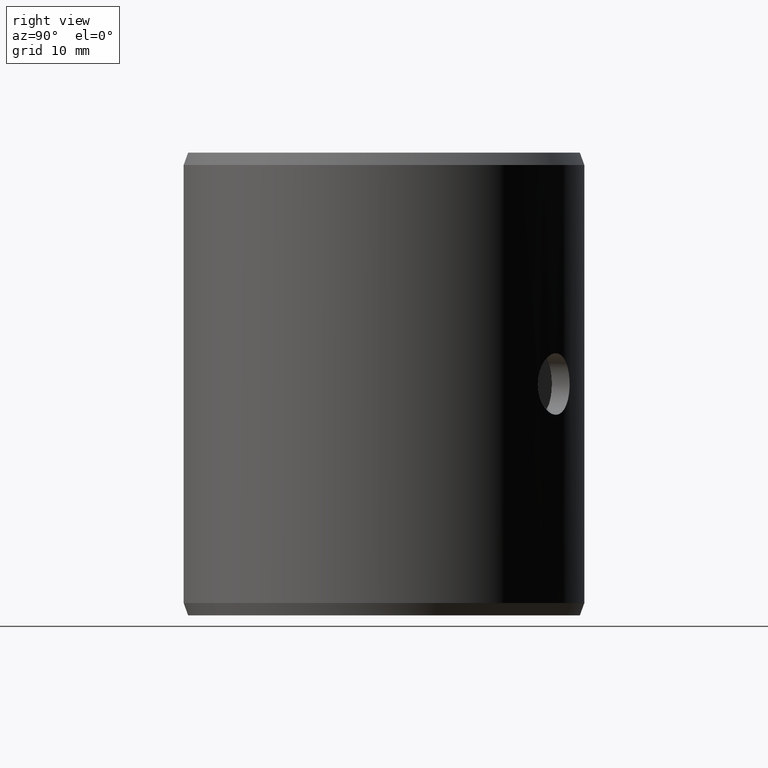
[diagram: clean part render]
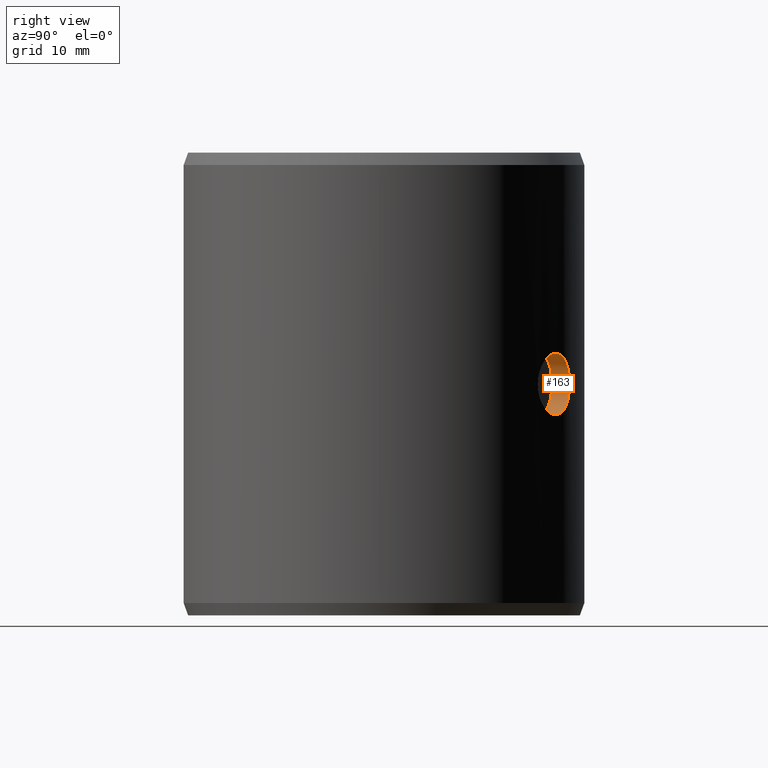
[diagram: same view with one face highlighted and labeled with its STEP entity id]
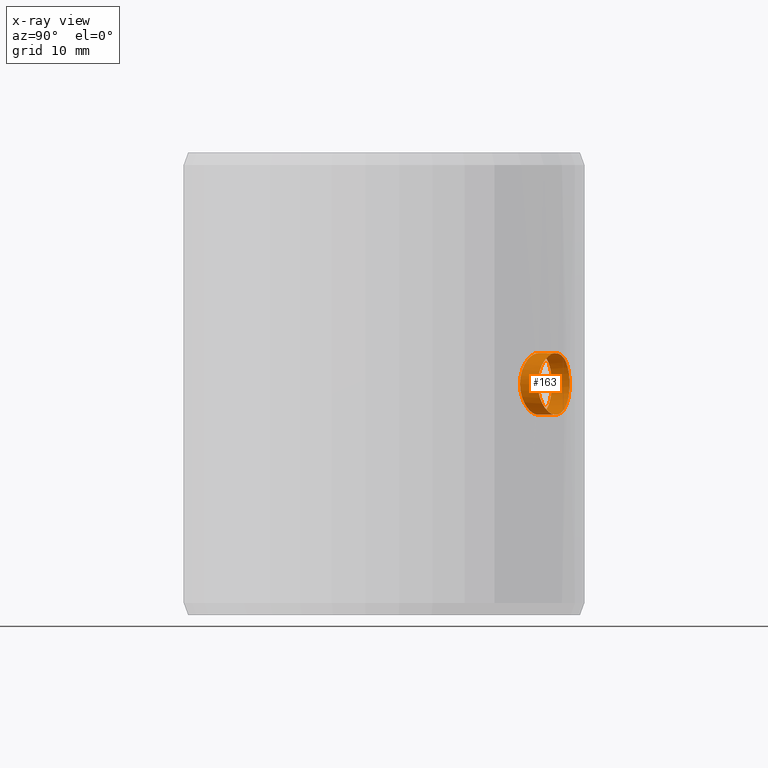
[diagram: x-ray of the same camera — body ghosted, the highlighted face saturated]
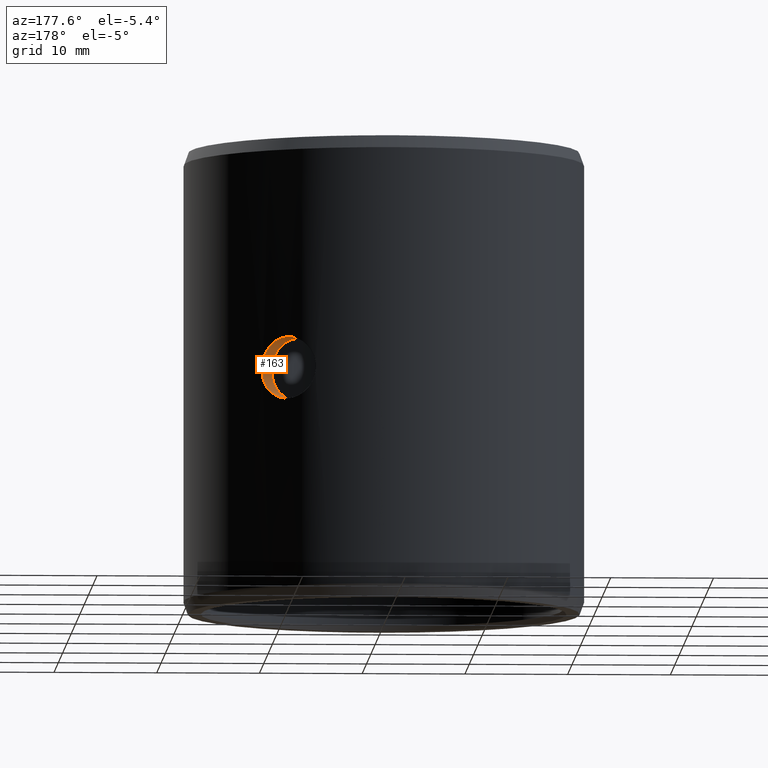
[diagram: same view with one face highlighted and labeled with its STEP entity id]
A machine part, right view. The second image highlights one B-rep face of the part: STEP entity #163.
The next image is the same camera in x-ray: the body ghosted, the highlighted face saturated — about 0% of this face is hidden behind the body in this view.
A second angle (auxiliary view) of the same face is appended — the face is thin or edge-on in the first view.
In plain terms, the highlighted cylindrical surface (bore or boss wall) has radius 3 mm, axis along (0.515, 0.8572, 0).
Its self-contained STEP definition (entity closure, byte-faithful):
#163=ADVANCED_FACE('',(#188,#189),#190,.F.);
#188=FACE_OUTER_BOUND('',#214,.T.);
#189=FACE_OUTER_BOUND('',#215,.T.);
#190=CYLINDRICAL_SURFACE('',#216,0.003);
#214=EDGE_LOOP('',(#297));
#215=EDGE_LOOP('',(#298));
#216=AXIS2_PLACEMENT_3D('',#299,#300,#301);
#297=ORIENTED_EDGE('',*,*,#326,.F.);
#298=ORIENTED_EDGE('',*,*,#327,.F.);
#299=CARTESIAN_POINT('',(0.0124289258602067,-0.00746805208615237,0.0225));
#300=DIRECTION('',(0.85716730070391,-0.515038074907062,0.0));
#301=DIRECTION('',(-0.515038074907062,-0.85716730070391,0.0));
#326=EDGE_CURVE('',#368,#368,#369,.T.);
#327=EDGE_CURVE('',#370,#370,#371,.T.);
#368=VERTEX_POINT('',#428);
#369=B_SPLINE_CURVE_WITH_KNOTS('',3,(#429,#430,#431,#432,#433,#434,#435,#436,#437,#438,#439,#440,#441,#442,#443,#444,#445,#446,#447,#448,#449,#450,#451,#452,#453,#454,#455,#456,#457,#458,#459,#460,#461,#462,#463,#464,#465,#466,#467,#468,#469,#470,#471,#472,#473,#474,#475,#476,#477,#478,#479,#480,#481,#482,#483,#484,#485,#486,#487,#488,#489,#490,#491,#492),.UNSPECIFIED.,.T.,.F.,(2,2,2,2,2,2,2,2,2,2,2,2,2,2,2,2,2,2,2,2,2,2,2,2,2,2,2,2,2,2,2,2,2,2),(-0.000587221033477321,0.0,0.000587221033477315,0.00117444206695463,0.00176166310043194,0.00234888413390926,0.00293610516738657,0.00352332620086389,0.0041105472343412,0.00469776826781852,0.00528498930129583,0.00587221033477315,0.00645943136825047,0.00704665240172778,0.0076338734352051,0.00822109446868242,0.00880831550215973,0.00939553653563705,0.00998275756911437,0.0105699786025917,0.011157199636069,0.0117444206695463,0.0123316417030236,0.012918862736501,0.0135060837699783,0.0140933048034556,0.0146805258369329,0.0152677468704102,0.0158549679038875,0.0164421889373649,0.0176166310043195,0.0182038520377968,0.0187910730712742,0.0193782941047515),.UNSPECIFIED.);
#370=VERTEX_POINT('',#493);
#371=B_SPLINE_CURVE_WITH_KNOTS('',3,(#494,#495,#496,#497,#498,#499,#500,#501,#502,#503,#504,#505,#506,#507,#508,#509,#510,#511,#512,#513,#514,#515,#516,#517,#518,#519,#520,#521,#522,#523,#524,#525,#526,#527,#528,#529,#530,#531,#532,#533,#534,#535,#536,#537,#538,#539,#540,#541,#542,#543,#544,#545,#546,#547,#548,#549,#550,#551,#552,#553,#554,#555,#556,#557,#558,#559),.UNSPECIFIED.,.T.,.F.,(2,2,2,2,2,2,2,2,2,2,2,2,2,2,2,2,2,2,2,2,2,2,2,2,2,2,2,2,2,2,2,2,2,2,2),(-0.000587009433090822,0.0,0.000587009433090825,0.00117401886618165,0.00176102829927247,0.0023480377323633,0.00293504716545412,0.00352205659854495,0.00410906603163577,0.0046960754647266,0.00528308489781742,0.00587009433090825,0.00645710376399907,0.0070441131970899,0.00763112263018072,0.00821813206327155,0.00880514149636237,0.00939215092945319,0.00997916036254402,0.0105661697956348,0.0111531792287257,0.0117401886618165,0.0123271980949073,0.0129142075279981,0.013501216961089,0.0140882263941798,0.0146752358272706,0.0152622452603614,0.0158492546934522,0.0164362641265431,0.0170232735596339,0.0176102829927247,0.0181972924258155,0.0187843018589064,0.0193713112919972),.UNSPECIFIED.);
#428=CARTESIAN_POINT('',(0.0132332554762969,-0.0114512422688134,0.0225));
#429=CARTESIAN_POINT('',(0.0132332554762969,-0.0114512422688134,0.0226985878317533));
#430=CARTESIAN_POINT('',(0.0132332554762969,-0.0114512422688134,0.0223014121682467));
#431=CARTESIAN_POINT('',(0.0132462502499575,-0.0114362737386044,0.0221062176435053));
#432=CARTESIAN_POINT('',(0.0132967856915806,-0.0113774774436589,0.0217223142861927));
#433=CARTESIAN_POINT('',(0.0133349512166993,-0.0113329122363727,0.0215315892892266));
#434=CARTESIAN_POINT('',(0.0134332823169054,-0.0112161825013413,0.0211684752862356));
#435=CARTESIAN_POINT('',(0.0134930062507869,-0.0111445446238804,0.0209963131621455));
#436=CARTESIAN_POINT('',(0.0136319949479402,-0.0109740970606592,0.0206704904128848));
#437=CARTESIAN_POINT('',(0.0137118177895944,-0.0108745303504638,0.0205165114209431));
#438=CARTESIAN_POINT('',(0.0138829860812394,-0.0106551421814216,0.0202403638861638));
#439=CARTESIAN_POINT('',(0.0139750082710844,-0.0105345267094124,0.0201163122925779));
#440=CARTESIAN_POINT('',(0.014170744849594,-0.0102697175996181,0.0198969842881805));
#441=CARTESIAN_POINT('',(0.0142726459601957,-0.010127895441503,0.0198040147591158));
#442=CARTESIAN_POINT('',(0.0144788487600751,-0.00983085079542873,0.0196542709472813));
#443=CARTESIAN_POINT('',(0.0145846663252628,-0.00967342091672745,0.0195964702585244));
#444=CARTESIAN_POINT('',(0.0147953310885796,-0.00934803412652868,0.0195192580935964));
#445=CARTESIAN_POINT('',(0.0148985468925628,-0.00918268677568743,0.0195001134949072));
#446=CARTESIAN_POINT('',(0.0151005273899564,-0.00884660999905928,0.0194998875016784));
#447=CARTESIAN_POINT('',(0.0152002169650322,-0.00867412868765641,0.0195194493594291));
#448=CARTESIAN_POINT('',(0.0153874655062465,-0.00833744622580273,0.0195961401973281));
#449=CARTESIAN_POINT('',(0.0154757713245558,-0.00817212996581181,0.0196528789371973));
#450=CARTESIAN_POINT('',(0.0156425884606747,-0.0078480973820429,0.0198034398994126));
#451=CARTESIAN_POINT('',(0.0157204304473556,-0.00769055623308388,0.019897210710964));
#452=CARTESIAN_POINT('',(0.0158610055222887,-0.00739628909969721,0.0201141520984759));
#453=CARTESIAN_POINT('',(0.0159248137641371,-0.00725741734420678,0.0202385004856519));
#454=CARTESIAN_POINT('',(0.0160394565945397,-0.00700040228003512,0.0205176979679346));
#455=CARTESIAN_POINT('',(0.01608884282041,-0.00688557766368859,0.02066878271299));
#456=CARTESIAN_POINT('',(0.0161739317565395,-0.00668326077580005,0.0209932731220683));
#457=CARTESIAN_POINT('',(0.0162099061215927,-0.00659505535272145,0.0211688246161539));
#458=CARTESIAN_POINT('',(0.0162667487333886,-0.0064535801863081,0.021531632484502));
#459=CARTESIAN_POINT('',(0.0162878286878656,-0.00639985670048641,0.0217186150305246));
#460=CARTESIAN_POINT('',(0.0163162673062908,-0.00632700168655616,0.0221037881701371));
#461=CARTESIAN_POINT('',(0.0163234555917626,-0.00630831178286999,0.0223028528799608));
#462=CARTESIAN_POINT('',(0.0163235120893371,-0.00630816558718994,0.0226947832427621));
#463=CARTESIAN_POINT('',(0.0163166118268718,-0.00632611288869702,0.0228898092725015));
#464=CARTESIAN_POINT('',(0.0162882086375017,-0.00639888937008356,0.0232779317401875));
#465=CARTESIAN_POINT('',(0.0162669209572252,-0.00645313989616637,0.0234668043320222));
#466=CARTESIAN_POINT('',(0.0162104771107113,-0.00659364571320098,0.0238279888187092));
#467=CARTESIAN_POINT('',(0.0161748164788111,-0.00668113022564001,0.0240029711009562));
#468=CARTESIAN_POINT('',(0.0160892318972891,-0.00688467908986579,0.0243301097377904));
#469=CARTESIAN_POINT('',(0.0160398563298427,-0.0069994554634311,0.0244809493180013));
#470=CARTESIAN_POINT('',(0.0159265085873207,-0.00725366749200372,0.0247577442691008));
#471=CARTESIAN_POINT('',(0.0158618337861023,-0.00739451757044189,0.0248843844691109));
#472=CARTESIAN_POINT('',(0.0157210962847255,-0.00768919974795156,0.0251019450060842));
#473=CARTESIAN_POINT('',(0.0156446517721771,-0.00784398279549365,0.0251942998988418));
#474=CARTESIAN_POINT('',(0.0154779482977019,-0.0081680053662048,0.0253455442018506));
#475=CARTESIAN_POINT('',(0.0153882644433432,-0.0083359552465319,0.0254033597770707));
#476=CARTESIAN_POINT('',(0.0152017490202574,-0.0086714277472367,0.025480093822618));
#477=CARTESIAN_POINT('',(0.0151037090301961,-0.00884122506740632,0.0254998427249298));
#478=CARTESIAN_POINT('',(0.0148995836961111,-0.00918105074835891,0.025500155408601));
#479=CARTESIAN_POINT('',(0.0147962420271354,-0.00934655884143399,0.0254808583042674));
#480=CARTESIAN_POINT('',(0.0145873953858909,-0.0096692727832886,0.0254047437067506));
#481=CARTESIAN_POINT('',(0.0144807169137241,-0.00982811726194725,0.025346922746799));
#482=CARTESIAN_POINT('',(0.0142734134702907,-0.0101268316445039,0.0251967034984746));
#483=CARTESIAN_POINT('',(0.0141725489638869,-0.0102672168446168,0.0251047131447361));
#484=CARTESIAN_POINT('',(0.0139776769097401,-0.0105309749821691,0.0248869947544013));
#485=CARTESIAN_POINT('',(0.0138838162794268,-0.0106540605298257,0.0247608149873488));
#486=CARTESIAN_POINT('',(0.0136270706203179,-0.0109831865742659,0.0243470837705835));
#487=CARTESIAN_POINT('',(0.0134826876658335,-0.0111575192700993,0.024013107326676));
#488=CARTESIAN_POINT('',(0.0133358098252313,-0.0113318997544334,0.0234720070217644));
#489=CARTESIAN_POINT('',(0.0132975048512904,-0.0113766388027506,0.0232822094163142));
#490=CARTESIAN_POINT('',(0.0132462532029104,-0.0114362721986988,0.0228947311625998));
#491=CARTESIAN_POINT('',(0.0132332554762969,-0.0114512422688134,0.0226985878317533));
#492=CARTESIAN_POINT('',(0.0132332554762969,-0.0114512422688134,0.0223014121682467));
#493=CARTESIAN_POINT('',(0.0149706557798313,-0.0124951776906855,0.0225));
#494=CARTESIAN_POINT('',(0.0149706557798313,-0.0124951776906855,0.0223014895659618));
#495=CARTESIAN_POINT('',(0.0149706557798313,-0.0124951776906855,0.0226985104340382));
#496=CARTESIAN_POINT('',(0.0149833314837837,-0.0124800348621713,0.0228936437700711));
#497=CARTESIAN_POINT('',(0.0150326641338093,-0.0124205676824387,0.0232774510972444));
#498=CARTESIAN_POINT('',(0.015069928540972,-0.0123755018770107,0.02346813604296));
#499=CARTESIAN_POINT('',(0.015166074696659,-0.0122574863342064,0.0238312887161006));
#500=CARTESIAN_POINT('',(0.0152245146701845,-0.0121850809388324,0.0240034806495446));
#501=CARTESIAN_POINT('',(0.015360702543225,-0.0120129455924481,0.0243293599681815));
#502=CARTESIAN_POINT('',(0.0154390290355291,-0.0119124178858036,0.0244834240533812));
#503=CARTESIAN_POINT('',(0.0156072645188539,-0.0116911338921615,0.0247596877692386));
#504=CARTESIAN_POINT('',(0.0156978269100683,-0.011569584921165,0.0248837646567694));
#505=CARTESIAN_POINT('',(0.0158907951376737,-0.0113030834217483,0.0251030880563401));
#506=CARTESIAN_POINT('',(0.0159914974718561,-0.0111604065941269,0.0251961039180374));
#507=CARTESIAN_POINT('',(0.016195616982516,-0.0108620742629689,0.0253458216467392));
#508=CARTESIAN_POINT('',(0.0163005398649087,-0.0107042024200055,0.0254035789307381));
#509=CARTESIAN_POINT('',(0.0165100406699082,-0.0103781552510023,0.02548076098473));
#510=CARTESIAN_POINT('',(0.0166129382585461,-0.0102126728562142,0.0254998882738148));
#511=CARTESIAN_POINT('',(0.01681483217084,-0.00987673141868303,0.0255001107595029));
#512=CARTESIAN_POINT('',(0.0169147753900004,-0.00970450713726847,0.0254805675821432));
#513=CARTESIAN_POINT('',(0.0171031344905516,-0.00936855783296243,0.025403911397553));
#514=CARTESIAN_POINT('',(0.0171922568560058,-0.00920377453121156,0.0253471972604755));
#515=CARTESIAN_POINT('',(0.0173611442878784,-0.00888109398890274,0.0251967181194372));
#516=CARTESIAN_POINT('',(0.0174403175020868,-0.00872421240254107,0.0251029136505754));
#517=CARTESIAN_POINT('',(0.0175836883760394,-0.00843151586089861,0.0248859401861775));
#518=CARTESIAN_POINT('',(0.0176489449722354,-0.0082936433831248,0.024761712522632));
#519=CARTESIAN_POINT('',(0.0177667341550724,-0.00803821725648331,0.0244822821200508));
#520=CARTESIAN_POINT('',(0.0178176424063448,-0.00792424227145673,0.0243311056782011));
#521=CARTESIAN_POINT('',(0.0179055338940902,-0.00772359064585286,0.0240065508513514));
#522=CARTESIAN_POINT('',(0.0179428032438487,-0.00763620301640861,0.0238310434821884));
#523=CARTESIAN_POINT('',(0.018001824736235,-0.00749600499740697,0.0234680944792541));
#524=CARTESIAN_POINT('',(0.0180237570118666,-0.00744282885363643,0.0232811109014696));
#525=CARTESIAN_POINT('',(0.0180533565520529,-0.00737074184677381,0.022896112521996));
#526=CARTESIAN_POINT('',(0.0180608552504371,-0.0073522450740322,0.0226970847531542));
#527=CARTESIAN_POINT('',(0.0180609130371271,-0.00735210311891799,0.022305234114312));
#528=CARTESIAN_POINT('',(0.018053714599517,-0.00736986449831897,0.0221103003725879));
#529=CARTESIAN_POINT('',(0.0180241636808527,-0.00744184366741361,0.0217224674647947));
#530=CARTESIAN_POINT('',(0.0180019946278781,-0.00749559133569008,0.0215334163612371));
#531=CARTESIAN_POINT('',(0.0179434140107477,-0.00763476218966424,0.0211722524523485));
#532=CARTESIAN_POINT('',(0.0179064998831356,-0.0077213611819968,0.0209974080678264));
#533=CARTESIAN_POINT('',(0.0178180415900439,-0.00792335474802498,0.0206699825400046));
#534=CARTESIAN_POINT('',(0.0177671431365666,-0.00803728413291257,0.0205190798731835));
#535=CARTESIAN_POINT('',(0.0176507898398454,-0.00828968814238652,0.0202422797843854));
#536=CARTESIAN_POINT('',(0.0175845757069147,-0.00842967054428598,0.0201155890456822));
#537=CARTESIAN_POINT('',(0.0174409841885843,-0.00872288477574771,0.0198979109294579));
#538=CARTESIAN_POINT('',(0.0173632697235621,-0.00887693617793337,0.0198055793777291));
#539=CARTESIAN_POINT('',(0.0171945373644908,-0.00919951173820663,0.0196544413507142));
#540=CARTESIAN_POINT('',(0.0171039289675329,-0.00936709294986622,0.0195965813647711));
#541=CARTESIAN_POINT('',(0.0169162943783774,-0.00970184523489855,0.0195198832385157));
#542=CARTESIAN_POINT('',(0.016818153681989,-0.00987112055732314,0.0195001668977406));
#543=CARTESIAN_POINT('',(0.0166139555630856,-0.0102110623774427,0.0194998352011615));
#544=CARTESIAN_POINT('',(0.0165109143728976,-0.0103767338284968,0.0195191360554897));
#545=CARTESIAN_POINT('',(0.0163032930854969,-0.0106999781749786,0.019595191627637));
#546=CARTESIAN_POINT('',(0.016197546027642,-0.0108592155021141,0.0196529320013771));
#547=CARTESIAN_POINT('',(0.0159922422067443,-0.0111593569635424,0.0198031834490454));
#548=CARTESIAN_POINT('',(0.01589262047771,-0.0113005059750439,0.0198951769328295));
#549=CARTESIAN_POINT('',(0.0157005771620229,-0.0115658418508942,0.0201127778379214));
#550=CARTESIAN_POINT('',(0.015608118199153,-0.0116899945902435,0.0202390767847351));
#551=CARTESIAN_POINT('',(0.0154398558385624,-0.0119113466460792,0.0205150534828849));
#552=CARTESIAN_POINT('',(0.0153629258767852,-0.0120101121813316,0.02066582571613));
#553=CARTESIAN_POINT('',(0.0152254008070771,-0.0121839836001047,0.0209939044414007));
#554=CARTESIAN_POINT('',(0.0151665116740981,-0.0122569436600335,0.0211674967259357));
#555=CARTESIAN_POINT('',(0.0150707765766145,-0.0123744671652382,0.0215282307236351));
#556=CARTESIAN_POINT('',(0.0150334126213185,-0.0124196635642654,0.0217177284131086));
#557=CARTESIAN_POINT('',(0.0149833341967204,-0.012480033431115,0.0221053473568906));
#558=CARTESIAN_POINT('',(0.0149706557798313,-0.0124951776906855,0.0223014895659618));
#559=CARTESIAN_POINT('',(0.0149706557798313,-0.0124951776906855,0.0226985104340382));